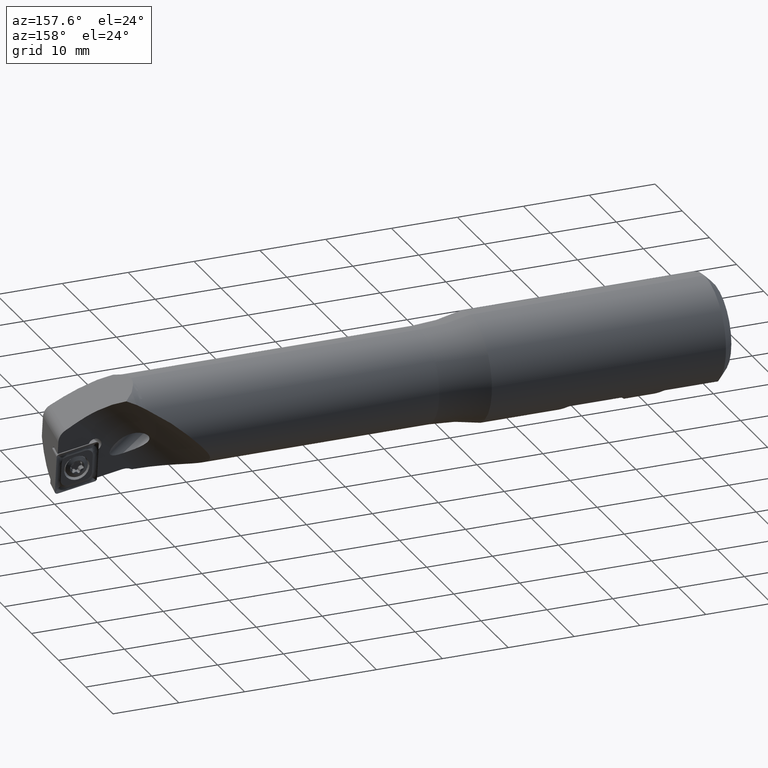
[diagram: clean part render]
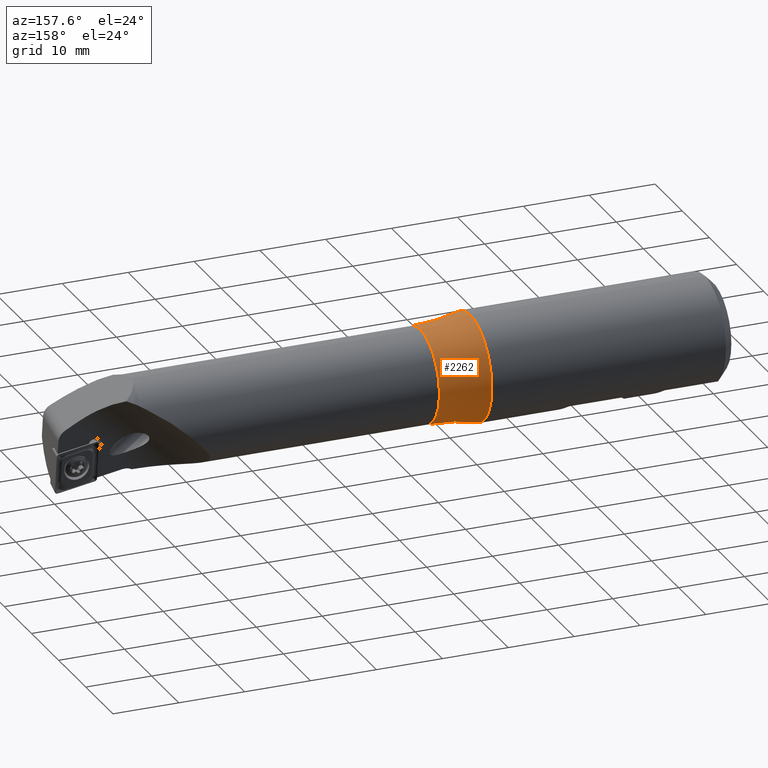
[diagram: same view with one face highlighted and labeled with its STEP entity id]
A machine part, auxiliary view. The second image highlights one B-rep face of the part: STEP entity #2262.
In plain terms, the highlighted toroidal blend (fillet) surface has major radius 37.025 mm and minor (blend) radius 30 mm.
Its self-contained STEP definition (entity closure, byte-faithful):
#124 = AXIS2_PLACEMENT_3D ( 'NONE', #2948, #1512, #3522 ) ;
#179 = ORIENTED_EDGE ( 'NONE', *, *, #1021, .F. ) ;
#221 = DIRECTION ( 'NONE',  ( -1.000000000000000000, -0.0000000000000000000, -0.0000000000000000000 ) ) ;
#267 = CIRCLE ( 'NONE', #3386, 8.000000000000000000 ) ;
#331 = ORIENTED_EDGE ( 'NONE', *, *, #1265, .T. ) ;
#444 = TOROIDAL_SURFACE ( 'NONE', #3012, 37.02500000000000600, 30.00000000000000000 ) ;
#493 = DIRECTION ( 'NONE',  ( -1.000000000000000000, -0.0000000000000000000, -0.0000000000000000000 ) ) ;
#577 = EDGE_LOOP ( 'NONE', ( #179 ) ) ;
#771 = EDGE_LOOP ( 'NONE', ( #331 ) ) ;
#1021 = EDGE_CURVE ( 'NONE', #1318, #1318, #267, .T. ) ;
#1068 = CARTESIAN_POINT ( 'NONE',  ( 44.50000000000000000, 0.0000000000000000000, 0.0000000000000000000 ) ) ;
#1111 = FACE_OUTER_BOUND ( 'NONE', #577, .T. ) ;
#1265 = EDGE_CURVE ( 'NONE', #3011, #3011, #2704, .T. ) ;
#1269 = CARTESIAN_POINT ( 'NONE',  ( 44.49999999999999300, 0.0000000000000000000, 7.025000000000003900 ) ) ;
#1318 = VERTEX_POINT ( 'NONE', #2095 ) ;
#1512 = DIRECTION ( 'NONE',  ( -1.000000000000000000, -0.0000000000000000000, -0.0000000000000000000 ) ) ;
#1862 = FACE_OUTER_BOUND ( 'NONE', #771, .T. ) ;
#1904 = DIRECTION ( 'NONE',  ( 0.0000000000000000000, 0.0000000000000000000, 1.000000000000000000 ) ) ;
#2095 = CARTESIAN_POINT ( 'NONE',  ( 36.91386956347309900, 0.0000000000000000000, 8.000000000000000000 ) ) ;
#2262 = ADVANCED_FACE ( 'NONE', ( #1111, #1862 ), #444, .F. ) ;
#2704 = CIRCLE ( 'NONE', #124, 7.025000000000003900 ) ;
#2948 = CARTESIAN_POINT ( 'NONE',  ( 44.49999999999999300, 0.0000000000000000000, 0.0000000000000000000 ) ) ;
#3011 = VERTEX_POINT ( 'NONE', #1269 ) ;
#3012 = AXIS2_PLACEMENT_3D ( 'NONE', #1068, #221, #1904 ) ;
#3026 = CARTESIAN_POINT ( 'NONE',  ( 36.91386956347309900, 0.0000000000000000000, 0.0000000000000000000 ) ) ;
#3064 = DIRECTION ( 'NONE',  ( 0.0000000000000000000, 0.0000000000000000000, 1.000000000000000000 ) ) ;
#3386 = AXIS2_PLACEMENT_3D ( 'NONE', #3026, #493, #3064 ) ;
#3522 = DIRECTION ( 'NONE',  ( 0.0000000000000000000, 0.0000000000000000000, 1.000000000000000000 ) ) ;